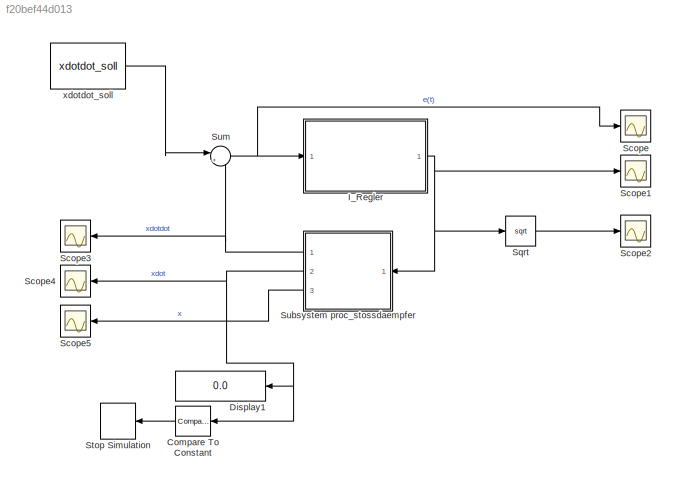
MODEL slx_f20bef44d013
KIND model
CONFIG AbsTol = 1e-12
CONFIG EnableMultiTasking = off
CONFIG FixedStep = auto
CONFIG MaxStep = auto
CONFIG MinStep = auto
CONFIG RelTol = 1e-12
CONFIG SampleTimeConstraint = Unconstrained
CONFIG Solver = ode23t
CONFIG SolverName = ode23t
CONFIG StartTime = 0.0
CONFIG StopTime = 10.0
BLOCK [Reference] Compare To Constant  REF=simulink/Logic and Bit
Operations/Compare
To Constant
  Ports = [1, 1]
  SourceBlock = simulink/Logic and Bit\nOperations/Compare\nTo Constant
  SourceProductBaseCode = SL
  SourceProductName = Simulink
  SourceType = Compare To Constant
BLOCK [Display] Display1
  Decimation = 1
  Ports = [1]
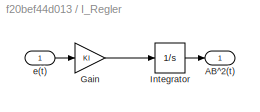
BLOCK [SubSystem] I_Regler
  Ports = [1, 1]
  RequestExecContextInheritance = off
BLOCK [Outport] I_Regler/AB^2(t)
  IconDisplay = Port number
BLOCK [Gain] I_Regler/Gain
  Gain = KI
  OutDataTypeStr = Inherit: Inherit via internal rule
  ParamDataTypeStr = Inherit: Inherit via internal rule
  SaturateOnIntegerOverflow = off
BLOCK [Integrator] I_Regler/Integrator
  InitialCondition = AB^2
  LimitOutput = on
  LowerSaturationLimit = AB^2/1000
  Ports = [1, 1]
BLOCK [Inport] I_Regler/e(t)
  IconDisplay = Port number
BLOCK [Scope] Scope
  Floating = off
  NumInputPorts = 1
  Ports = [1]
  ScopeSpecificationString = Simulink.scopes.TimeScopeBlockCfg('CurrentConfiguration', extmgr.ConfigurationSet(extmgr.Configuration('Core','General UI',true),extmgr.Configuration('Core','Source UI',true),extmgr.Configuration('Sources','WiredSimulink',true,'DataLoggingVariableName','ScopeData1'),extmgr.Configuration('Visuals','Time Domain',true,'SerializedDisplays',{struct('MinYLimReal','-108.00194','MaxYLimReal','32.65697','Y...<+1504ch>
BLOCK [Scope] Scope1
  Floating = off
  NumInputPorts = 1
  Ports = [1]
  ScopeSpecificationString = Simulink.scopes.TimeScopeBlockCfg('CurrentConfiguration', extmgr.ConfigurationSet(extmgr.Configuration('Core','General UI',true),extmgr.Configuration('Core','Source UI',true),extmgr.Configuration('Sources','WiredSimulink',true,'DataLoggingVariableName','ScopeData2'),extmgr.Configuration('Visuals','Time Domain',true,'SerializedDisplays',{struct('MinYLimReal','-0.0000000002','MaxYLimReal','0.0000000...<+1511ch>
BLOCK [Scope] Scope2
  Floating = off
  NumInputPorts = 1
  Ports = [1]
  ScopeSpecificationString = Simulink.scopes.TimeScopeBlockCfg('CurrentConfiguration', extmgr.ConfigurationSet(extmgr.Configuration('Core','General UI',true),extmgr.Configuration('Core','Source UI',true),extmgr.Configuration('Sources','WiredSimulink',true,'DataLoggingVariableName','ScopeData3'),extmgr.Configuration('Visuals','Time Domain',true,'SerializedDisplays',{struct('MinYLimReal','-0.000000','MaxYLimReal','0.000048','YL...<+1477ch>
BLOCK [Scope] Scope3
  Floating = off
  NumInputPorts = 1
  Ports = [1]
  ScopeSpecificationString = Simulink.scopes.TimeScopeBlockCfg('CurrentConfiguration', extmgr.ConfigurationSet(extmgr.Configuration('Core','General UI',true),extmgr.Configuration('Core','Source UI',true),extmgr.Configuration('Sources','WiredSimulink',true),extmgr.Configuration('Visuals','Time Domain',true,'SerializedDisplays',{struct('MinYLimReal','-100.85642','MaxYLimReal','-99.8486','YLabelReal','','MinYLimMag',' 0.00000','...<+1470ch>
BLOCK [Scope] Scope4
  Floating = off
  NumInputPorts = 1
  Ports = [1]
  ScopeSpecificationString = Simulink.scopes.TimeScopeBlockCfg('CurrentConfiguration', extmgr.ConfigurationSet(extmgr.Configuration('Core','General UI',true),extmgr.Configuration('Core','Source UI',true),extmgr.Configuration('Sources','WiredSimulink',true,'DataLoggingVariableName','ScopeData4'),extmgr.Configuration('Visuals','Time Domain',true,'SerializedDisplays',{struct('MinYLimReal','-0.01283','MaxYLimReal','3.33476','YLab...<+1494ch>
BLOCK [Scope] Scope5
  Floating = off
  NumInputPorts = 1
  Ports = [1]
  ScopeSpecificationString = Simulink.scopes.TimeScopeBlockCfg('CurrentConfiguration', extmgr.ConfigurationSet(extmgr.Configuration('Core','General UI',true),extmgr.Configuration('Core','Source UI',true),extmgr.Configuration('Sources','WiredSimulink',true,'DataLoggingVariableName','ScopeData5'),extmgr.Configuration('Visuals','Time Domain',true,'SerializedDisplays',{struct('MinYLimReal','-0.00558','MaxYLimReal','0.05023','YLab...<+1491ch>
BLOCK [Sqrt] Sqrt
BLOCK [Stop] Stop Simulation
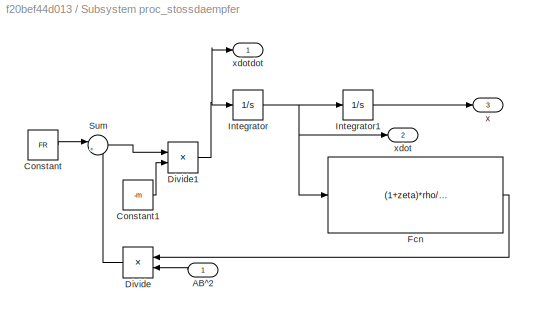
BLOCK [SubSystem] Subsystem proc_stossdaempfer
  Ports = [1, 3]
  RequestExecContextInheritance = off
BLOCK [Inport] Subsystem proc_stossdaempfer/AB^2
  IconDisplay = Port number
BLOCK [Constant] Subsystem proc_stossdaempfer/Constant
  Value = FR
BLOCK [Constant] Subsystem proc_stossdaempfer/Constant1
  Value = -m
BLOCK [Product] Subsystem proc_stossdaempfer/Divide
  InputSameDT = off
  Inputs = */
  OutDataTypeStr = Inherit: Inherit via internal rule
  Ports = [2, 1]
  RndMeth = Floor
  SaturateOnIntegerOverflow = off
BLOCK [Product] Subsystem proc_stossdaempfer/Divide1
  InputSameDT = off
  Inputs = */
  OutDataTypeStr = Inherit: Inherit via internal rule
  Ports = [2, 1]
  RndMeth = Floor
  SaturateOnIntegerOverflow = off
BLOCK [Fcn] Subsystem proc_stossdaempfer/Fcn
  Expr = (1+zeta)*rho/2*AK^3*u^2
BLOCK [Integrator] Subsystem proc_stossdaempfer/Integrator
  InitialCondition = 3
  Ports = [1, 1]
BLOCK [Integrator] Subsystem proc_stossdaempfer/Integrator1
  LimitOutput = on
  LowerSaturationLimit = 0
  Ports = [1, 1]
BLOCK [Sum] Subsystem proc_stossdaempfer/Sum
  IconShape = round
  InputSameDT = off
  Inputs = |++
  OutDataTypeStr = Inherit: Inherit via internal rule
  Ports = [2, 1]
  SaturateOnIntegerOverflow = off
BLOCK [Outport] Subsystem proc_stossdaempfer/x
  IconDisplay = Port number
  Port = 3
BLOCK [Outport] Subsystem proc_stossdaempfer/xdot
  IconDisplay = Port number
  Port = 2
BLOCK [Outport] Subsystem proc_stossdaempfer/xdotdot
  IconDisplay = Port number
BLOCK [Sum] Sum
  IconShape = round
  InputSameDT = off
  Inputs = |+-
  OutDataTypeStr = Inherit: Inherit via internal rule
  Ports = [2, 1]
  SaturateOnIntegerOverflow = off
BLOCK [Constant] xdotdot_soll
  Value = xdotdot_soll
LINE Compare To Constant:1 -> Stop Simulation:1
LINE I_Regler/Gain:1 -> I_Regler/Integrator:1
LINE I_Regler/Integrator:1 -> I_Regler/AB^2(t):1
LINE I_Regler/e(t):1 -> I_Regler/Gain:1
NET I_Regler:1 -> Scope1:1, Sqrt:1, Subsystem proc_stossdaempfer:1
LINE Sqrt:1 -> Scope2:1
LINE Subsystem proc_stossdaempfer/AB^2:1 -> Subsystem proc_stossdaempfer/Divide:2
LINE Subsystem proc_stossdaempfer/Constant1:1 -> Subsystem proc_stossdaempfer/Divide1:2
LINE Subsystem proc_stossdaempfer/Constant:1 -> Subsystem proc_stossdaempfer/Sum:1
NET Subsystem proc_stossdaempfer/Divide1:1 -> Subsystem proc_stossdaempfer/Integrator:1, Subsystem proc_stossdaempfer/xdotdot:1
LINE Subsystem proc_stossdaempfer/Divide:1 -> Subsystem proc_stossdaempfer/Sum:2
LINE Subsystem proc_stossdaempfer/Fcn:1 -> Subsystem proc_stossdaempfer/Divide:1
LINE Subsystem proc_stossdaempfer/Integrator1:1 -> Subsystem proc_stossdaempfer/x:1
NET Subsystem proc_stossdaempfer/Integrator:1 -> Subsystem proc_stossdaempfer/Fcn:1, Subsystem proc_stossdaempfer/Integrator1:1, Subsystem proc_stossdaempfer/xdot:1
LINE Subsystem proc_stossdaempfer/Sum:1 -> Subsystem proc_stossdaempfer/Divide1:1
NET Subsystem proc_stossdaempfer:1 -> Scope3:1, Sum:2
NET Subsystem proc_stossdaempfer:2 -> Compare To Constant:1, Display1:1, Scope4:1
LINE Subsystem proc_stossdaempfer:3 -> Scope5:1
NET Sum:1 -> I_Regler:1, Scope:1
LINE xdotdot_soll:1 -> Sum:1
note: NET lines group one-source signal fan-out (src -> all destinations, sorted); 1:1 wires keep LINE
